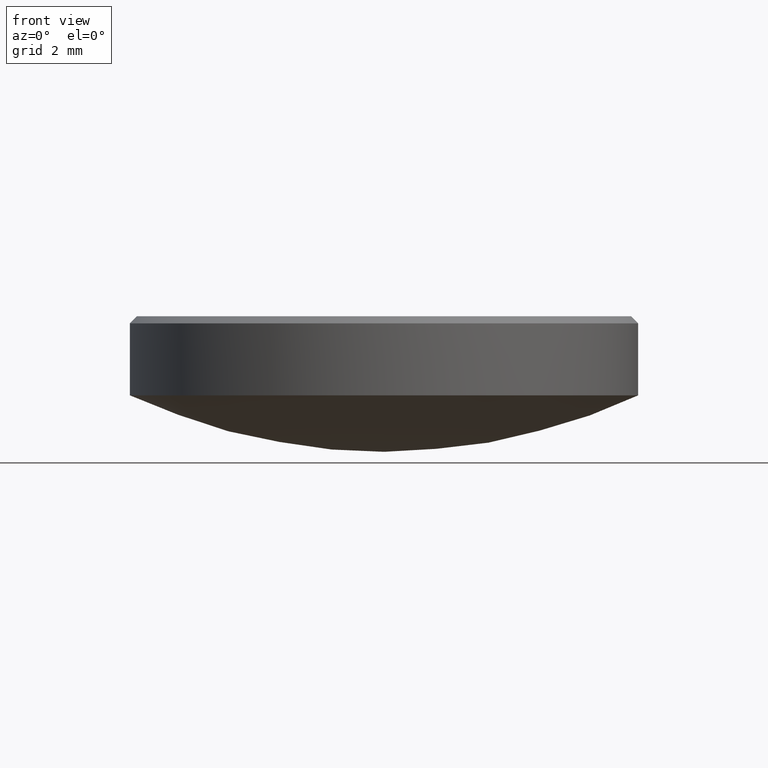
[diagram: clean part render]
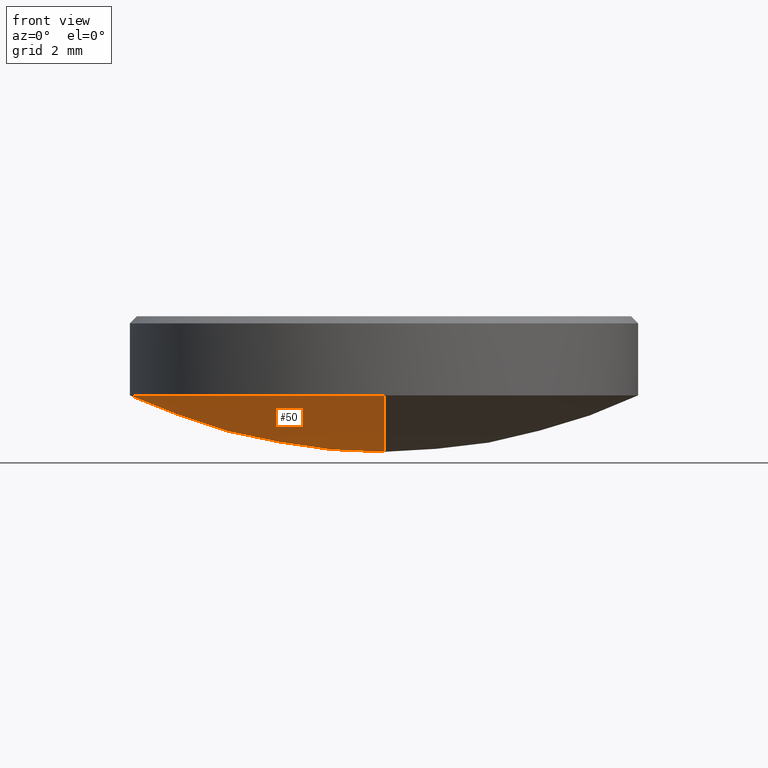
[diagram: same view with one face highlighted and labeled with its STEP entity id]
A machine part, front view. The second image highlights one B-rep face of the part: STEP entity #50.
In plain terms, the highlighted spherical surface has radius 15 mm.
Its self-contained STEP definition (entity closure, byte-faithful):
#3 = EDGE_CURVE ( 'NONE', #138, #42, #12, .T. ) ;
#5 = ORIENTED_EDGE ( 'NONE', *, *, #209, .T. ) ;
#6 = CIRCLE ( 'NONE', #250, 6.349999999999998757 ) ;
#8 = EDGE_LOOP ( 'NONE', ( #245, #5, #205, #68 ) ) ;
#12 = CIRCLE ( 'NONE', #92, 15.00000000000000355 ) ;
#13 = DIRECTION ( 'NONE',  ( 0.000000000000000000, 0.000000000000000000, -1.000000000000000000 ) ) ;
#17 = DIRECTION ( 'NONE',  ( 0.000000000000000000, 1.000000000000000000, 0.000000000000000000 ) ) ;
#28 = DIRECTION ( 'NONE',  ( -0.000000000000000000, -0.000000000000000000, 1.000000000000000000 ) ) ;
#29 = DIRECTION ( 'NONE',  ( 1.000000000000000000, -0.000000000000000000, 0.000000000000000000 ) ) ;
#33 = AXIS2_PLACEMENT_3D ( 'NONE', #153, #79, #213 ) ;
#42 = VERTEX_POINT ( 'NONE', #202 ) ;
#50 = ADVANCED_FACE ( 'NONE', ( #103 ), #234, .T. ) ;
#51 = CARTESIAN_POINT ( 'NONE',  ( 0.000000000000000000, 9.184850993605149917E-16, 2.589610001762374214 ) ) ;
#68 = ORIENTED_EDGE ( 'NONE', *, *, #268, .F. ) ;
#74 = CARTESIAN_POINT ( 'NONE',  ( 0.000000000000000000, 0.000000000000000000, 17.58961000176237732 ) ) ;
#79 = DIRECTION ( 'NONE',  ( -0.000000000000000000, -0.000000000000000000, 1.000000000000000000 ) ) ;
#84 = CARTESIAN_POINT ( 'NONE',  ( -7.776507174585693149E-16, -6.350000000000001421, 3.999999999999999112 ) ) ;
#89 = CIRCLE ( 'NONE', #33, 6.349999999999998757 ) ;
#92 = AXIS2_PLACEMENT_3D ( 'NONE', #74, #29, #13 ) ;
#94 = CARTESIAN_POINT ( 'NONE',  ( 0.000000000000000000, 0.000000000000000000, 4.000000000000000000 ) ) ;
#97 = CARTESIAN_POINT ( 'NONE',  ( -6.349999999999998757, 0.000000000000000000, 4.000000000000000000 ) ) ;
#103 = FACE_OUTER_BOUND ( 'NONE', #8, .T. ) ;
#137 = DIRECTION ( 'NONE',  ( 1.000000000000000000, 0.000000000000000000, 0.000000000000000000 ) ) ;
#138 = VERTEX_POINT ( 'NONE', #51 ) ;
#139 = EDGE_CURVE ( 'NONE', #193, #254, #6, .T. ) ;
#140 = DIRECTION ( 'NONE',  ( -1.000000000000000000, 1.224646799147353207E-16, 0.000000000000000000 ) ) ;
#153 = CARTESIAN_POINT ( 'NONE',  ( 0.000000000000000000, 0.000000000000000000, 4.000000000000000000 ) ) ;
#163 = DIRECTION ( 'NONE',  ( -1.224646799147352961E-16, -1.000000000000000000, 0.000000000000000000 ) ) ;
#173 = CIRCLE ( 'NONE', #197, 15.00000000000000355 ) ;
#181 = AXIS2_PLACEMENT_3D ( 'NONE', #183, #227, #17 ) ;
#183 = CARTESIAN_POINT ( 'NONE',  ( 0.000000000000000000, 0.000000000000000000, 17.58961000176237732 ) ) ;
#193 = VERTEX_POINT ( 'NONE', #97 ) ;
#197 = AXIS2_PLACEMENT_3D ( 'NONE', #271, #140, #163 ) ;
#202 = CARTESIAN_POINT ( 'NONE',  ( 0.000000000000000000, 6.350000000000001421, 3.999999999999999112 ) ) ;
#205 = ORIENTED_EDGE ( 'NONE', *, *, #139, .F. ) ;
#209 = EDGE_CURVE ( 'NONE', #138, #254, #173, .T. ) ;
#213 = DIRECTION ( 'NONE',  ( 1.000000000000000000, 0.000000000000000000, 0.000000000000000000 ) ) ;
#227 = DIRECTION ( 'NONE',  ( -1.000000000000000000, 0.000000000000000000, 0.000000000000000000 ) ) ;
#234 = SPHERICAL_SURFACE ( 'NONE', #181, 15.00000000000000355 ) ;
#245 = ORIENTED_EDGE ( 'NONE', *, *, #3, .F. ) ;
#250 = AXIS2_PLACEMENT_3D ( 'NONE', #94, #28, #137 ) ;
#254 = VERTEX_POINT ( 'NONE', #84 ) ;
#268 = EDGE_CURVE ( 'NONE', #42, #193, #89, .T. ) ;
#271 = CARTESIAN_POINT ( 'NONE',  ( 0.000000000000000000, 0.000000000000000000, 17.58961000176237732 ) ) ;